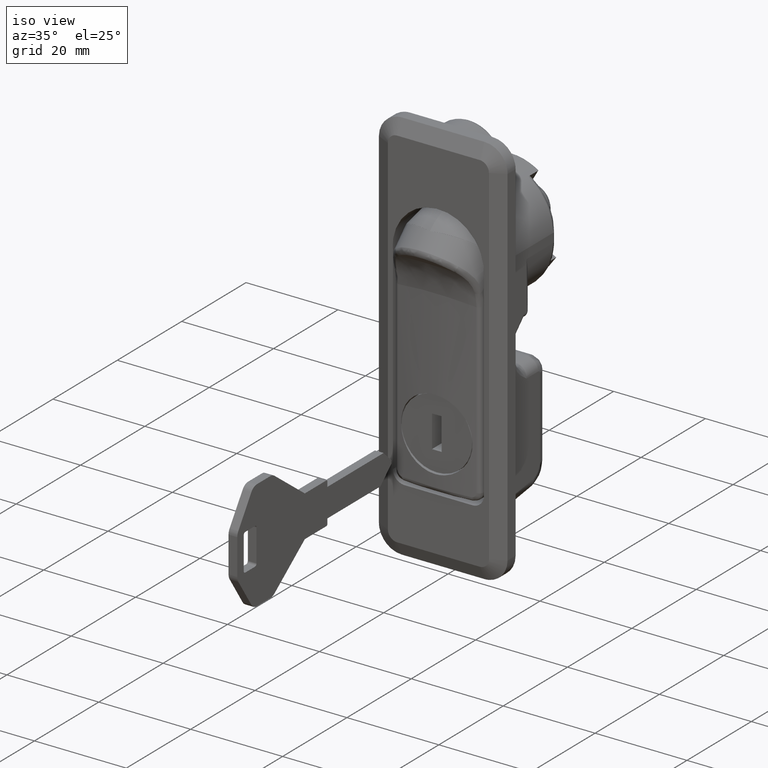
[diagram: clean part render]
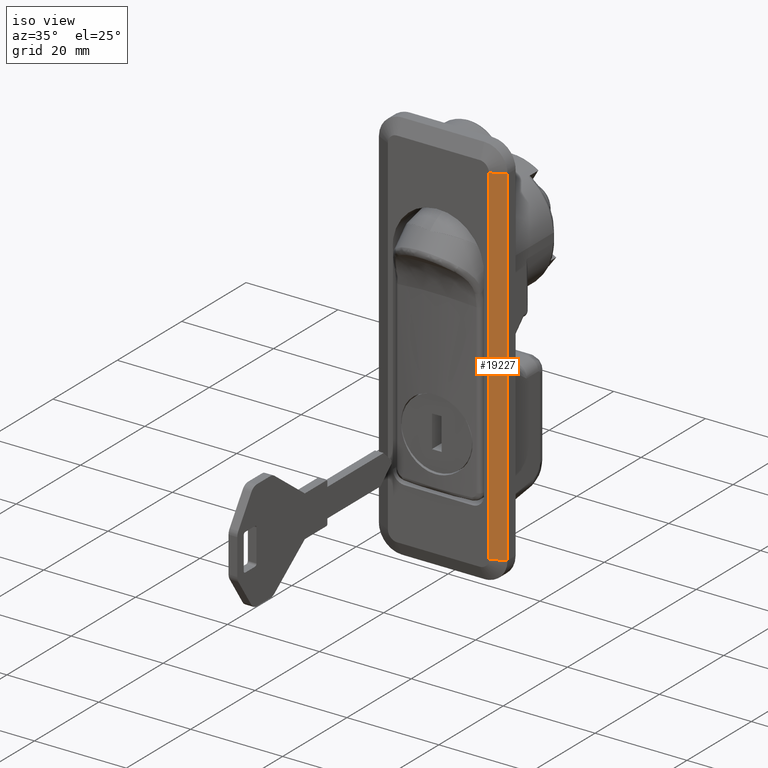
[diagram: same view with one face highlighted and labeled with its STEP entity id]
A machine part, iso view. The second image highlights one B-rep face of the part: STEP entity #19227.
In plain terms, the highlighted face is a freeform B-spline surface patch.
Its self-contained STEP definition (entity closure, byte-faithful):
#19192=CARTESIAN_POINT('',(-1.425075002907237,-14.149849994185420,-59.796199852697256));
#19193=CARTESIAN_POINT('',(-3.074925037325757,-10.850149925348310,-59.796199852697256));
#19194=CARTESIAN_POINT('',(-1.425075002907237,-14.149849994185420,23.796201891176100));
#19195=CARTESIAN_POINT('',(-3.074925037325757,-10.850149925348310,23.796201891176100));
#19196=B_SPLINE_SURFACE_WITH_KNOTS('',1,1,((#19192,#19194),(#19193,#19195)),.UNSPECIFIED.,.F.,.F.,.U.,(2,2),(2,2),(0.0,3.689176829640241),(0.0,83.592401743873367),.UNSPECIFIED.);
#19197=CARTESIAN_POINT('',(-1.499999999999946,-14.0,20.0));
#19198=VERTEX_POINT('',#19197);
#19199=CARTESIAN_POINT('',(-2.999999999999915,-11.0,20.0));
#19200=VERTEX_POINT('',#19199);
#19201=CARTESIAN_POINT('',(-1.499999999999946,-14.0,20.0));
#19202=CARTESIAN_POINT('',(-2.999999999999915,-11.0,20.0));
#19203=QUASI_UNIFORM_CURVE('',1,(#19201,#19202),.UNSPECIFIED.,.F.,.U.);
#19204=EDGE_CURVE('',#19198,#19200,#19203,.T.);
#19205=ORIENTED_EDGE('',*,*,#19204,.T.);
#19206=CARTESIAN_POINT('',(-2.999999999999915,-11.0,-56.0));
#19207=VERTEX_POINT('',#19206);
#19208=CARTESIAN_POINT('',(-2.999999999999915,-11.0,-56.0));
#19209=CARTESIAN_POINT('',(-2.999999999999915,-11.0,20.0));
#19210=QUASI_UNIFORM_CURVE('',1,(#19208,#19209),.UNSPECIFIED.,.F.,.U.);
#19211=EDGE_CURVE('',#19207,#19200,#19210,.T.);
#19212=ORIENTED_EDGE('',*,*,#19211,.F.);
#19213=CARTESIAN_POINT('',(-1.499999999999946,-14.0,-56.0));
#19214=VERTEX_POINT('',#19213);
#19215=CARTESIAN_POINT('',(-2.999999999999915,-11.0,-56.0));
#19216=CARTESIAN_POINT('',(-1.499999999999946,-14.0,-56.0));
#19217=QUASI_UNIFORM_CURVE('',1,(#19215,#19216),.UNSPECIFIED.,.F.,.U.);
#19218=EDGE_CURVE('',#19207,#19214,#19217,.T.);
#19219=ORIENTED_EDGE('',*,*,#19218,.T.);
#19220=CARTESIAN_POINT('',(-1.499999999999946,-14.0,20.0));
#19221=CARTESIAN_POINT('',(-1.499999999999946,-14.0,-56.0));
#19222=QUASI_UNIFORM_CURVE('',1,(#19220,#19221),.UNSPECIFIED.,.F.,.U.);
#19223=EDGE_CURVE('',#19198,#19214,#19222,.T.);
#19224=ORIENTED_EDGE('',*,*,#19223,.F.);
#19225=EDGE_LOOP('',(#19205,#19212,#19219,#19224));
#19226=FACE_OUTER_BOUND('',#19225,.T.);
#19227=ADVANCED_FACE('',(#19226),#19196,.F.);